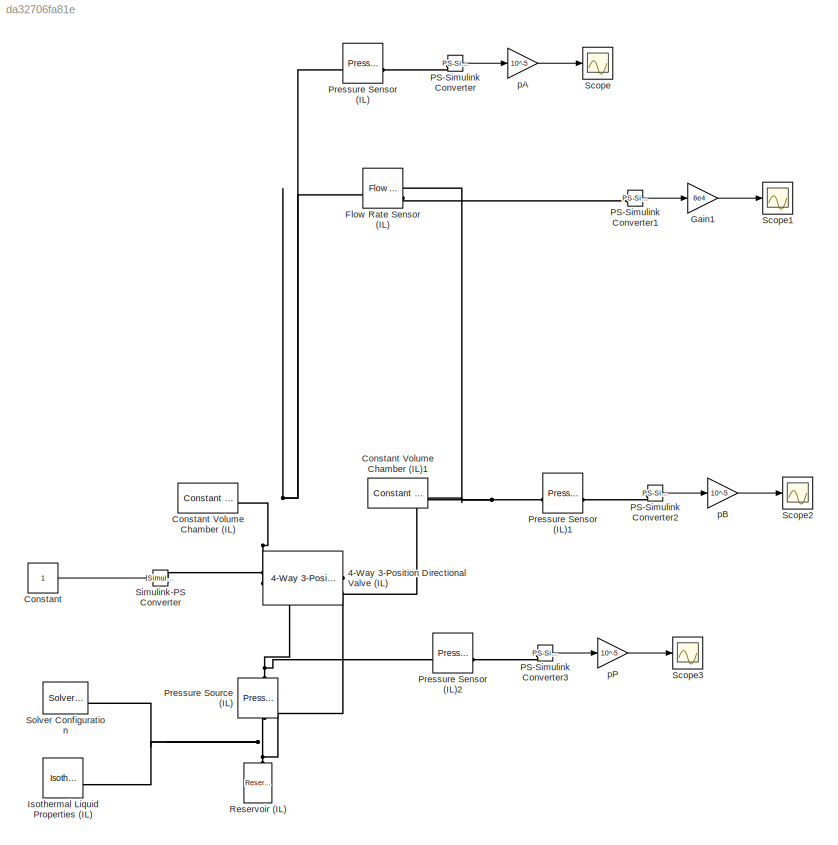
MODEL slx_da32706fa81e
KIND model
CONFIG AbsTol = auto
CONFIG EnableMultiTasking = off
CONFIG FixedStep = auto
CONFIG MaxStep = auto
CONFIG MinStep = auto
CONFIG RelTol = 1e-3
CONFIG SampleTimeConstraint = Unconstrained
CONFIG SolverName = VariableStepAuto
CONFIG StartTime = 0.0
CONFIG StopTime = 30
WORKSPACE source: MATLAB code (in-file)
WORKSPACE code: clear;
WORKSPACE rho = 875
WORKSPACE beta = 1000
WORKSPACE pP = 140
WORKSPACE dp0 = 70e5  (= 7000000)
WORKSPACE Q0 = 100/6e4  (= 0.00166666666667)
WORKSPACE Cd = 0.75
WORKSPACE AdMax_SI = Q0/(Cd*(2/rho*dp0)^0.5)  (= 1.75682092232e-05)
WORKSPACE AdMax = AdMax_SI*1e6  (= 17.5682092232)
WORKSPACE DM = 250
WORKSPACE m = 200
WORKSPACE Wm = 200*9.81  (= 1962)
WORKSPACE rW = 0.25
WORKSPACE MW = Wm*rW  (= 490.5)
WORKSPACE JM = 0.01
WORKSPACE JD = 0.1
WORKSPACE Jeff = JM + JD + m*rW^2  (= 12.61)
WORKSPACE thetaDot0 = 5
WORKSPACE T0 = 10
WORKSPACE Kp = 0.05
WORKSPACE Ki = 0.2
BLOCK [Reference] 4-Way 3-Position Directional Valve (IL)  REF=SimscapeFluids_lib/Isothermal Liquid/Valves & Orifices/Directional Control
Valves/4-Way 3-Position
Directional Valve
(IL)
  SourceBlock = SimscapeFluids_lib/Isothermal Liquid/Valves & Orifices/Directional Control\nValves/4-Way 3-Position\nDirectional Valve\n(IL)
  SourceType = 4-Way 3-Position\nDirectional Valve\n(IL)
BLOCK [Constant] Constant
BLOCK [Reference] Constant Volume Chamber (IL)  REF=fl_lib/Isothermal Liquid/Elements/Constant Volume
Chamber (IL)
  SourceBlock = fl_lib/Isothermal Liquid/Elements/Constant Volume\nChamber (IL)
  SourceType = Constant Volume\nChamber (IL)
BLOCK [Reference] Constant Volume Chamber (IL)1  REF=fl_lib/Isothermal Liquid/Elements/Constant Volume
Chamber (IL)
  SourceBlock = fl_lib/Isothermal Liquid/Elements/Constant Volume\nChamber (IL)
  SourceType = Constant Volume\nChamber (IL)
BLOCK [Reference] Flow Rate Sensor (IL)  REF=fl_lib/Isothermal Liquid/Sensors/Flow Rate Sensor
(IL)
  SourceBlock = fl_lib/Isothermal Liquid/Sensors/Flow Rate Sensor\n(IL)
  SourceType = Flow Rate Sensor\n(IL)
BLOCK [Gain] Gain1
  Gain = 6e4
BLOCK [Reference] Isothermal Liquid Properties (IL)  REF=fl_lib/Isothermal Liquid/Utilities/Isothermal Liquid
Properties (IL)
  SourceBlock = fl_lib/Isothermal Liquid/Utilities/Isothermal Liquid\nProperties (IL)
  SourceType = Isothermal Liquid\nProperties (IL)
BLOCK [Reference] PS-Simulink Converter  REF=nesl_utility/PS-Simulink
Converter
  SourceBlock = nesl_utility/PS-Simulink\nConverter
  SourceType = PS-Simulink\nConverter
BLOCK [Reference] PS-Simulink Converter1  REF=nesl_utility/PS-Simulink
Converter
  SourceBlock = nesl_utility/PS-Simulink\nConverter
  SourceType = PS-Simulink\nConverter
BLOCK [Reference] PS-Simulink Converter2  REF=nesl_utility/PS-Simulink
Converter
  SourceBlock = nesl_utility/PS-Simulink\nConverter
  SourceType = PS-Simulink\nConverter
BLOCK [Reference] PS-Simulink Converter3  REF=nesl_utility/PS-Simulink
Converter
  SourceBlock = nesl_utility/PS-Simulink\nConverter
  SourceType = PS-Simulink\nConverter
BLOCK [Reference] Pressure Sensor (IL)  REF=fl_lib/Isothermal Liquid/Sensors/Pressure Sensor (IL)
  SourceBlock = fl_lib/Isothermal Liquid/Sensors/Pressure Sensor (IL)
  SourceType = Pressure Sensor (IL)
BLOCK [Reference] Pressure Sensor (IL)1  REF=fl_lib/Isothermal Liquid/Sensors/Pressure Sensor (IL)
  SourceBlock = fl_lib/Isothermal Liquid/Sensors/Pressure Sensor (IL)
  SourceType = Pressure Sensor (IL)
BLOCK [Reference] Pressure Sensor (IL)2  REF=fl_lib/Isothermal Liquid/Sensors/Pressure Sensor (IL)
  SourceBlock = fl_lib/Isothermal Liquid/Sensors/Pressure Sensor (IL)
  SourceType = Pressure Sensor (IL)
BLOCK [Reference] Pressure Source (IL)  REF=fl_lib/Isothermal Liquid/Sources/Pressure Source (IL)
  NameLocation = right
  SourceBlock = fl_lib/Isothermal Liquid/Sources/Pressure Source (IL)
  SourceType = Pressure Source (IL)
BLOCK [Reference] Reservoir (IL)  REF=fl_lib/Isothermal Liquid/Elements/Reservoir (IL)
  NameLocation = right
  SourceBlock = fl_lib/Isothermal Liquid/Elements/Reservoir (IL)
  SourceType = Reservoir (IL)
BLOCK [Scope] Scope
  ActiveDisplayYMaximum = 143.42586
  ActiveDisplayYMinimum = 116.27129
  Floating = off
  GraphicalSettings = {"GraphicalSettings":{"LegacySettings":true,"Style":{"Style":{"AxesColor":"[0 0 0]","ChannelNames":[""],"ColorOrder":"[1 0.909803921568627 0.392156862745098;0.149019607843137 0.549019607843137 0.866666666666667;0.96078431372549 0.466666666666667 0.16078431372549;0.286274509803922 0.858823529411765 0.250980392156863;0.752941176470588 0.36078431372549 0.984313725490196;0.423529411764706 0.9568627450...<+432ch>  <repeated x3 — deduplicated; at blocks: Scope, Scope2, Scope3>
  MultipleDisplayCache = [{"MaxYLimMag":143.42586,"MaxYLimReal":143.42586,"MinYLimMag":116.27129,"MinYLimReal":116.27129,"PlotAsMagnitudePhase":false,"ShowGrid":true,"ShowLegend":false,"Title":"%<SignalLabel>","YLabel":""}]
  NumInputPorts = 1
  WasSavedAsWebScope = on
  WindowPosition = [865 239.4 560 420]
BLOCK [Scope] Scope1
  ActiveDisplayYMaximum = 99.601093313250018
  ActiveDisplayYMinimum = 99.588490885787635
  DataLoggingVariableName = ScopeData1
  Floating = off
  GraphicalSettings = {"Style":{"BackgroundColor":[0.12941176470588237,0.12941176470588237,0.12941176470588237],"AxesColor":[0.07058823529411765,0.07058823529411765,0.07058823529411765],"LabelsColor":[0.8509803921568627,0.8509803921568627,0.8509803921568627],"PreserveColors":false,"Visible":[true],"LineStyle":["-"],"LineWidth":[1.5],"BarWidth":[0.9],"LineColor":["auto"],"LineFaceAlpha":[1],"LineEdgeAlpha":[1],"Marker":...<+1895ch>
  MultipleDisplayCache = [{"MaxYLimMag":99.601093313250018,"MaxYLimReal":99.601093313250018,"MinYLimMag":99.588490885787635,"MinYLimReal":99.588490885787635,"PlotAsMagnitudePhase":false,"ShowGrid":true,"ShowLegend":false,"Title":"%<SignalLabel>","YLabel":""}]
  NumInputPorts = 1
  ScopeFrameLocation = window
  WasSavedAsWebScope = on
  WindowPosition = [865.000000,239.000000,560.000000,420.000000,]
BLOCK [Scope] Scope2
  ActiveDisplayYMaximum = 21.16103
  ActiveDisplayYMinimum = -0.58181
  DataLoggingVariableName = ScopeData2
  Floating = off
  MultipleDisplayCache = [{"MaxYLimMag":21.16103,"MaxYLimReal":21.16103,"MinYLimMag":0,"MinYLimReal":-0.58181,"PlotAsMagnitudePhase":false,"ShowGrid":true,"ShowLegend":false,"Title":"%<SignalLabel>","YLabel":""}]
  NumInputPorts = 1
  WasSavedAsWebScope = on
  WindowPosition = [865 239.4 560 420]
BLOCK [Scope] Scope3
  ActiveDisplayYMaximum = 240
  ActiveDisplayYMinimum = 40
  DataLoggingVariableName = ScopeData3
  Floating = off
  MultipleDisplayCache = [{"MaxYLimMag":240,"MaxYLimReal":240,"MinYLimMag":40,"MinYLimReal":40,"PlotAsMagnitudePhase":false,"ShowGrid":true,"ShowLegend":false,"Title":"%<SignalLabel>","YLabel":""}]
  NumInputPorts = 1
  WasSavedAsWebScope = on
  WindowPosition = [865 239.4 560 420]
BLOCK [Reference] Simulink-PS Converter  REF=nesl_utility/Simulink-PS
Converter
  SourceBlock = nesl_utility/Simulink-PS\nConverter
  SourceType = Simulink-PS\nConverter
BLOCK [Reference] Solver Configuration  REF=nesl_utility/Solver
Configuration
  SourceBlock = nesl_utility/Solver\nConfiguration
  SourceType = Solver\nConfiguration
BLOCK [Gain] pA
  Gain = 10^-5
BLOCK [Gain] pB
  Gain = 10^-5
BLOCK [Gain] pP
  Gain = 10^-5
LINE Constant:1 -> Simulink-PS Converter:1
LINE Gain1:1 -> Scope1:1
LINE PS-Simulink Converter1:1 -> Gain1:1
LINE PS-Simulink Converter2:1 -> pB:1
LINE PS-Simulink Converter3:1 -> pP:1
LINE PS-Simulink Converter:1 -> pA:1
LINE pA:1 -> Scope:1
LINE pB:1 -> Scope2:1
LINE pP:1 -> Scope3:1
PLINE 4-Way 3-Position Directional Valve (IL):LConn1 -- Simulink-PS Converter:RConn1
PNET net1: 4-Way 3-Position Directional Valve (IL):LConn2 -- Constant Volume Chamber (IL):LConn1 -- Flow Rate Sensor (IL):LConn1 -- Pressure Sensor (IL):LConn1
PNET net2: 4-Way 3-Position Directional Valve (IL):LConn3 -- Constant Volume Chamber (IL)1:LConn1 -- Flow Rate Sensor (IL):RConn1 -- Pressure Sensor (IL)1:LConn1
PNET net3: 4-Way 3-Position Directional Valve (IL):RConn1 -- Pressure Sensor (IL)2:LConn1 -- Pressure Source (IL):RConn1
PNET net4: 4-Way 3-Position Directional Valve (IL):RConn2 -- Isothermal Liquid Properties (IL):RConn1 -- Pressure Source (IL):LConn1 -- Reservoir (IL):LConn1 -- Solver Configuration:RConn1
PLINE Flow Rate Sensor (IL):RConn2 -- PS-Simulink Converter1:LConn1
PLINE PS-Simulink Converter2:LConn1 -- Pressure Sensor (IL)1:RConn1
PLINE PS-Simulink Converter3:LConn1 -- Pressure Sensor (IL)2:RConn1
PLINE PS-Simulink Converter:LConn1 -- Pressure Sensor (IL):RConn1
note: PNET lines group multi-terminal physical nets as a canonical sorted terminal list (undirected conserving connections); 2-terminal nets keep the pairwise PLINE form
